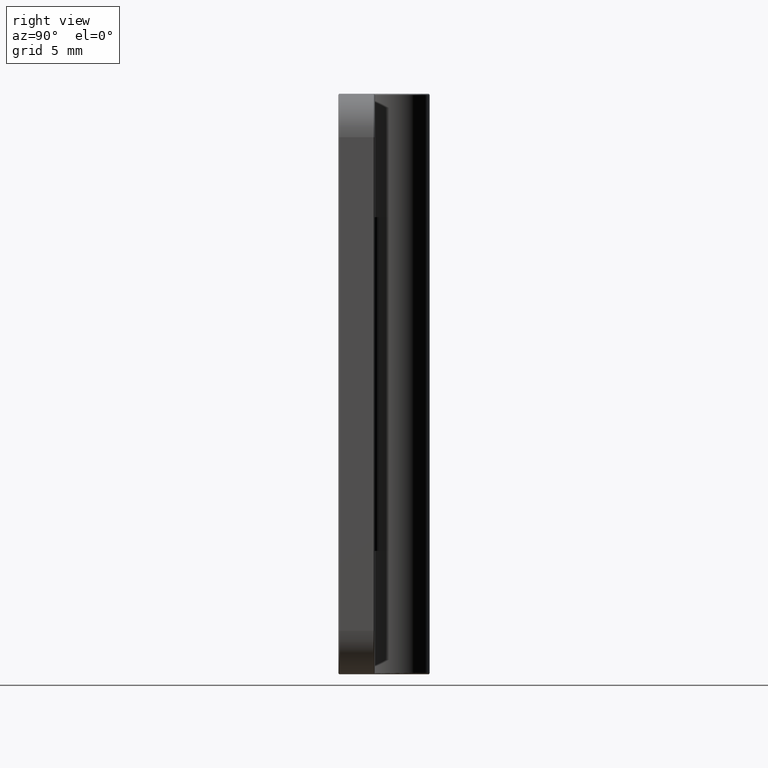
[diagram: clean part render]
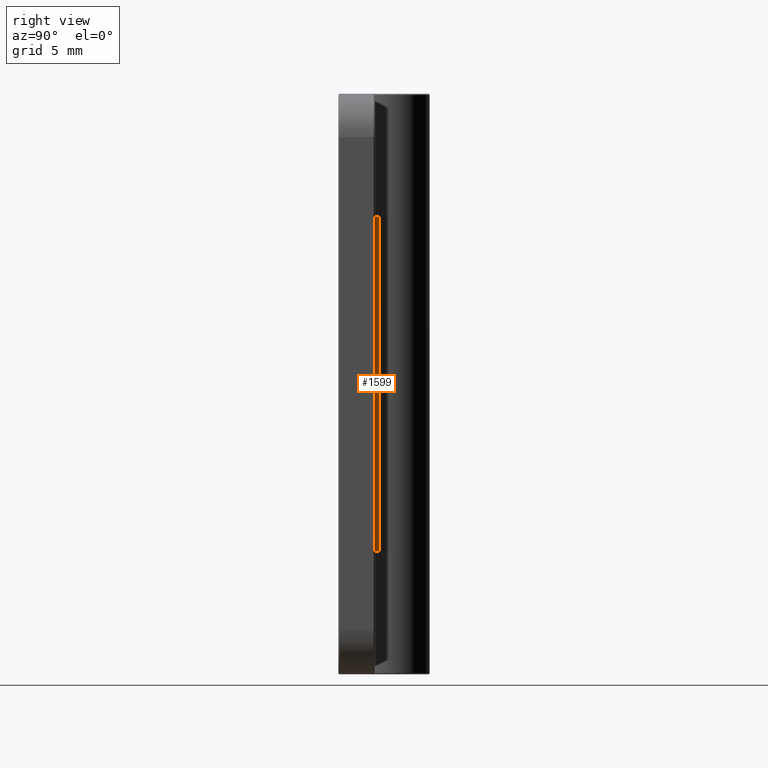
[diagram: same view with one face highlighted and labeled with its STEP entity id]
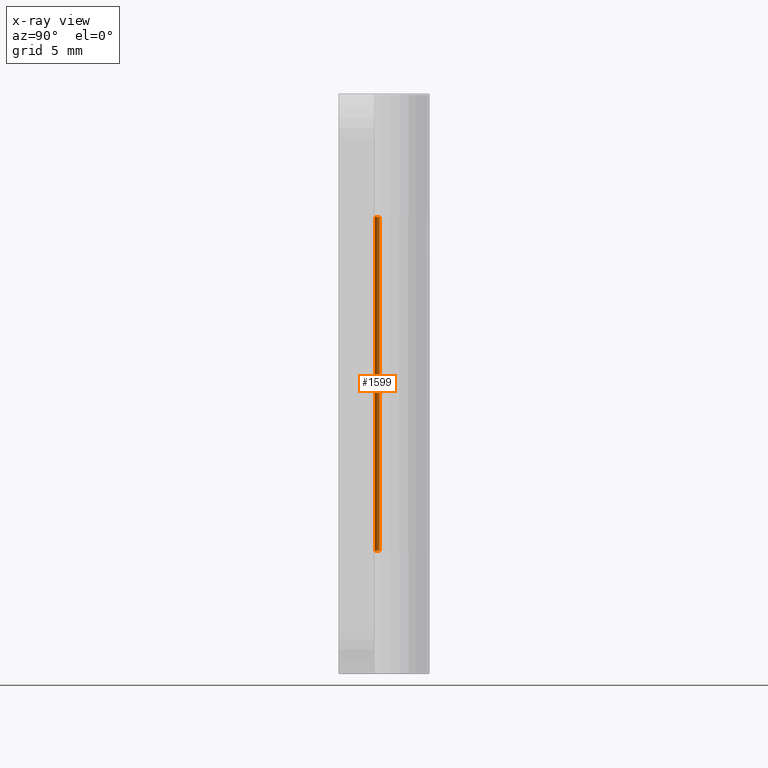
[diagram: x-ray of the same camera — body ghosted, the highlighted face saturated]
A machine part, right view. The second image highlights one B-rep face of the part: STEP entity #1599.
The next image is the same camera in x-ray: the body ghosted, the highlighted face saturated — about 0% of this face is hidden behind the body in this view.
In plain terms, the highlighted cylindrical surface (edge-blend (fillet) strip) has radius 0.2842 mm, axis along (0, 0, -1).
Its self-contained STEP definition (entity closure, byte-faithful):
#113=CYLINDRICAL_SURFACE('',#1785,0.284210526315788);
#179=CIRCLE('',#1743,0.284210526315788);
#185=CIRCLE('',#1750,0.284210526315788);
#288=FACE_OUTER_BOUND('',#402,.T.);
#402=EDGE_LOOP('',(#1442,#1443,#1444,#1445));
#543=LINE('',#2766,#669);
#544=LINE('',#2772,#670);
#669=VECTOR('',#2263,23.);
#670=VECTOR('',#2270,23.);
#788=VERTEX_POINT('',#2681);
#789=VERTEX_POINT('',#2683);
#794=VERTEX_POINT('',#2694);
#797=VERTEX_POINT('',#2701);
#987=EDGE_CURVE('',#789,#788,#179,.T.);
#997=EDGE_CURVE('',#794,#797,#185,.T.);
#1029=EDGE_CURVE('',#788,#794,#543,.T.);
#1032=EDGE_CURVE('',#789,#797,#544,.T.);
#1442=ORIENTED_EDGE('',*,*,#987,.T.);
#1443=ORIENTED_EDGE('',*,*,#1029,.T.);
#1444=ORIENTED_EDGE('',*,*,#997,.T.);
#1445=ORIENTED_EDGE('',*,*,#1032,.F.);
#1599=ADVANCED_FACE('',(#288),#113,.F.);
#1743=AXIS2_PLACEMENT_3D('',#2684,#2165,#2166);
#1750=AXIS2_PLACEMENT_3D('',#2703,#2183,#2184);
#1785=AXIS2_PLACEMENT_3D('',#2771,#2268,#2269);
#2165=DIRECTION('center_axis',(0.,0.,-1.));
#2166=DIRECTION('ref_axis',(1.95317013591463E-15,1.,0.));
#2183=DIRECTION('center_axis',(0.,0.,1.));
#2184=DIRECTION('ref_axis',(1.95317013591463E-15,1.,0.));
#2263=DIRECTION('',(0.,0.,1.));
#2268=DIRECTION('center_axis',(0.,0.,1.));
#2269=DIRECTION('ref_axis',(1.95317013591463E-15,1.,0.));
#2270=DIRECTION('',(0.,0.,1.));
#2681=CARTESIAN_POINT('',(-3.,2.5,-11.5));
#2683=CARTESIAN_POINT('',(-2.72354948805461,2.85017064846416,-11.5));
#2684=CARTESIAN_POINT('Origin',(-3.,2.78421052631579,-11.5));
#2694=CARTESIAN_POINT('',(-3.,2.5,11.5));
#2701=CARTESIAN_POINT('',(-2.72354948805461,2.85017064846416,11.5));
#2703=CARTESIAN_POINT('Origin',(-3.,2.78421052631579,11.5));
#2766=CARTESIAN_POINT('',(-3.,2.5,0.));
#2771=CARTESIAN_POINT('Origin',(-3.,2.78421052631579,0.));
#2772=CARTESIAN_POINT('',(-2.72354948805461,2.85017064846416,0.));